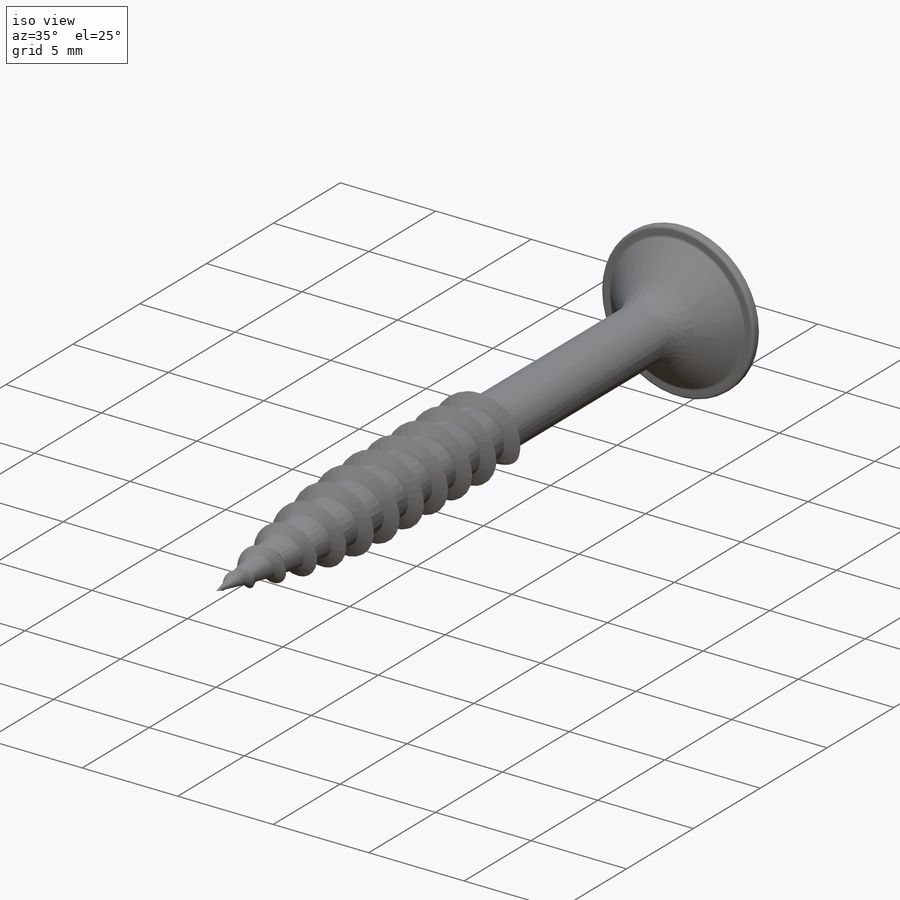
[diagram: iso view]
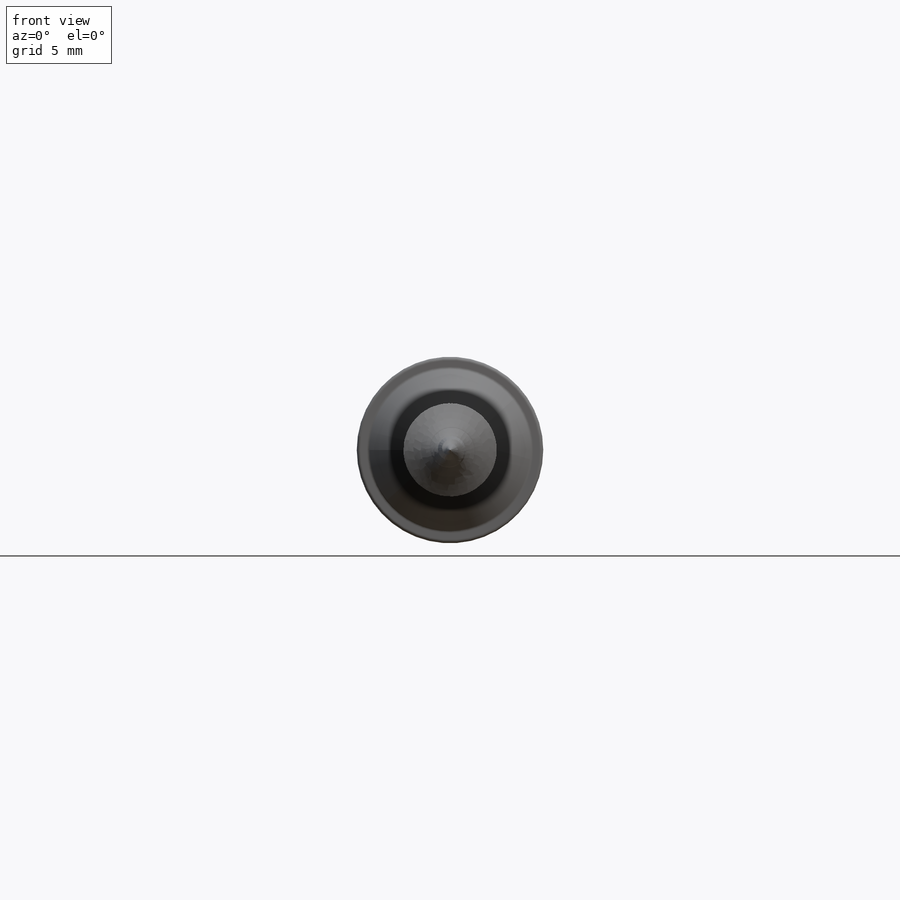
[diagram: front view]
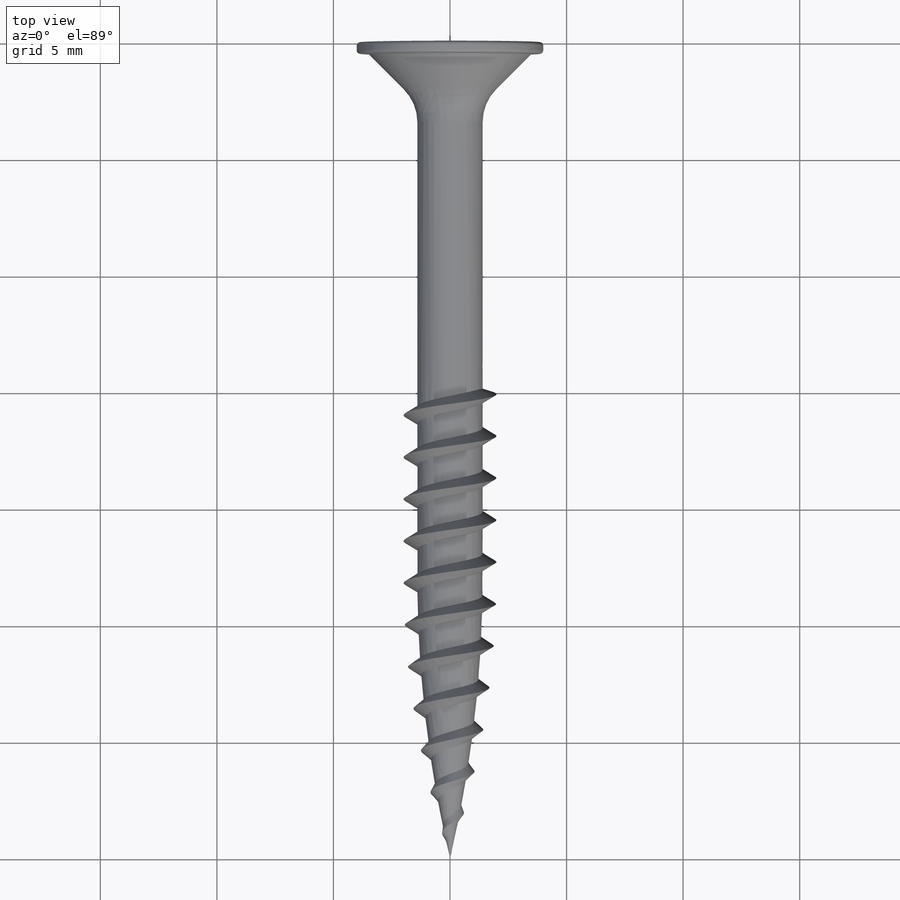
[diagram: top view]
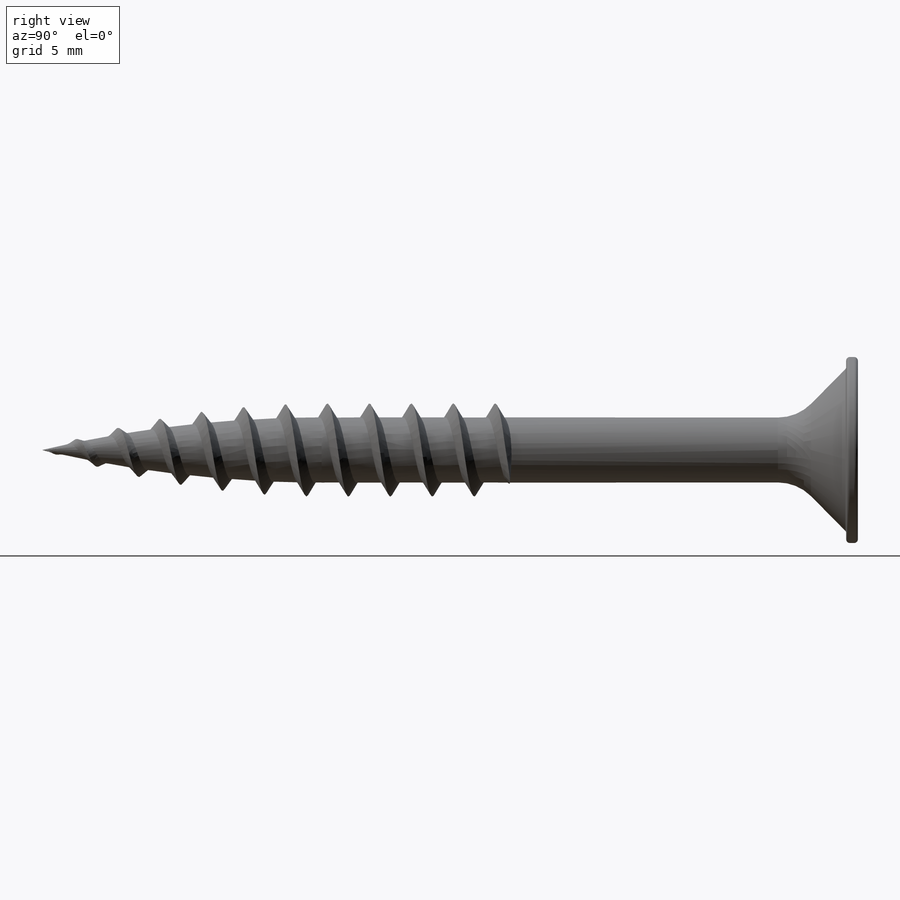
[diagram: right view]
SOLIDWORKS PART (.sldprt)
format: sldprt  version: not decoded by parser v0  size: 1,947,136 bytes
history: native  units: mm
features: sketch x16, hole x7, plane x6, fillet x4, revolve x3, delete_body x2, material x1, cut_extrude x1, boolean_combine x1, extrude x1 (+10 scaffold rows collapsed)
feature tree (52):
  scaffold x10  (default folders/planes/origin — collapsed)
  material  "Material <nicht festgelegt>"
  plane  "Ebene vorne"
  plane  "Ebene oben"
  plane  "Ebene rechts"
  sketch  "Skizze1"  dims[c1.D8=2.0mm c1.D9=~0.151667mm c1.D12=0.2mm c1.D1=~19.581149mm c2.D1=45.0deg c2.D2=0.5mm c2.D3=8.0mm c2.D4=3.5mm c2.D5=2.8mm c2.D6=12.0mm c2.D7=35.0mm c2.D10=~1.433047mm c3.D10=15.0deg c3.D11=4.0mm]
  revolve  "Rotation1"  Angle=360deg
  sketch  "Skizze2"  dims[c1.D1=3.86mm c1.D3=2.5mm c1.D2=0.5mm c1.D7=3.0mm c1.D10=5.0mm c1.D11=0.25mm c1.D12=0.25mm c1.D13=0.25mm c1.D14=0.25mm c1.D15=0.25mm c1.D16=0.25mm c2.D7=0.25mm c2.D9=2.5mm c2.D10=3.86mm c2.D11=0.68mm c3.D9=0.68mm c3.D2=~1.217281mm c4.D2=54.75deg c4.D4=~4.494461mm c5.D4=30.0deg c5.D5=~4.494461mm c6.D5=60.0deg c6.D6=2.25mm c7.D6=30.0deg c7.D2=~4.494461mm c8.D2=60.0deg c8.D4=~4.494461mm c9.D4=30.0deg c9.D5=~4.494461mm c10.D5=~91.550043deg c11.D5=~4.494461mm c12.D5=105.0deg c13.D5=~4.494461mm c14.D5=30.0deg c14.D6=~4.494461mm c15.D6=60.0deg c15.D7=~1.671429mm c16.D7=30.0deg c16.D8=1.93mm c17.D8=30.0deg]
  hole  "Ø2.5 (2.5) Durchmesser Bohrung1"  Diameter=2.5mm Depth=1.5mm
  sketch  "Skizze4"
  sketch  "Skizze3"  dims[hole-wizard template sketch: 47 standard entries collapsed; hole parameters kept: c15.Bohrungstiefe=1.5mm c15.D3=~14.816244mm c15.Spitzenwinkel=118.0deg]
  cut_extrude  "Schnitt-Linear austragen5"  Depth=1.45mm
  plane  "Ebene5"
  sketch  "Skizze15"  dims[D1=20.0mm]
  sketch  "Skizze18"  dims[c1.D1=0.6mm c2.D1=360.0deg]
  sketch  "Skizze16"  dims[c1.D1=4.0mm c2.D1=~140.94747deg c3.D1=4000.0deg]
  sketch  "Skizze19"  dims[c1.D1=~4.199725mm c2.D1=~70.473735deg]
  sketch  "Skizze20"  dims[D1=20.0mm]
  sketch  "Skizze15<2>"  dims[c1.D1=4000.0deg c2.D1=0.0mm]
  revolve  "Oberfläche-Trimmen3"  [1 undecoded]
  revolve  "Oberfläche-Trimmen4"  [1 undecoded]
  sketch  "3D-Skizze20"
  hole  "3D-Skizze21"  [1 undecoded]
  plane  "Ebene6"
  sketch  "Skizze21"
  hole  "3D-Skizze22"  [1 undecoded]
  hole  "3D-Skizze23"  [1 undecoded]
  plane  "Ebene7"
  sketch  "Skizze22"
  hole  "3D-Skizze24"  [1 undecoded]
  sketch  "3D-Skizze22<2>"
  delete_body  "Körper-Löschen1"
  hole  "3D-Skizze27"  [1 undecoded]
  sketch  "Oberfläche-Zusammenfügen2"
  hole  "3D-Skizze26"  [1 undecoded]
  delete_body  "Oberflächenausfüllung19"
  sketch  "Oberfläche-Zusammenfügen3"
  boolean_combine  "Kombinieren1"
  fillet  "Verrundung3"  Radius=0.1mm
  fillet  "Verrundung4"  Radius=0.1mm
  fillet  "Verrundung5"  Radius=0.1mm
  extrude  "Körper-Löschen2"  [1 undecoded]
  fillet  "Verrundung6"  Radius=0.75mm
decode coverage: 16 of 35 modeling features carry decoded parameters
note: ~ marks probable driven/reference dimensions
note: 9 parameter values undecoded
summary: no parameter record found for 9 features
note: suppression state not decoded; provenance and decode notes live in map.json
